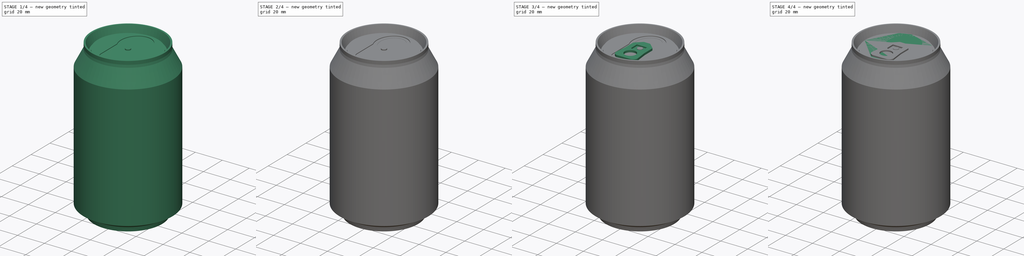
[diagram: build sequence overview — one tinted view per stage of 4, left to right]
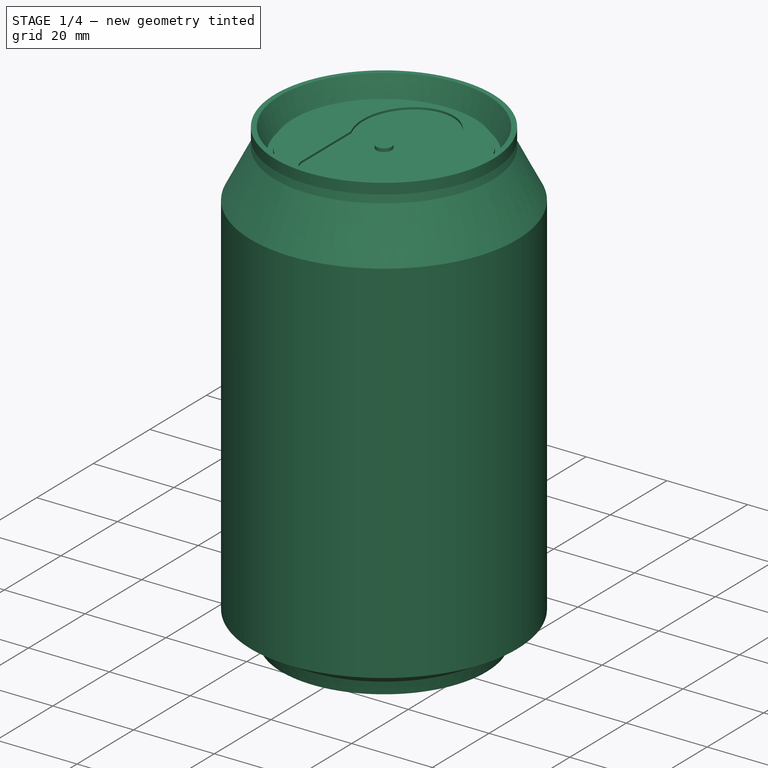
[diagram: stage 1 of 4 — iso view after this stage's code; geometry added in this stage tinted green]
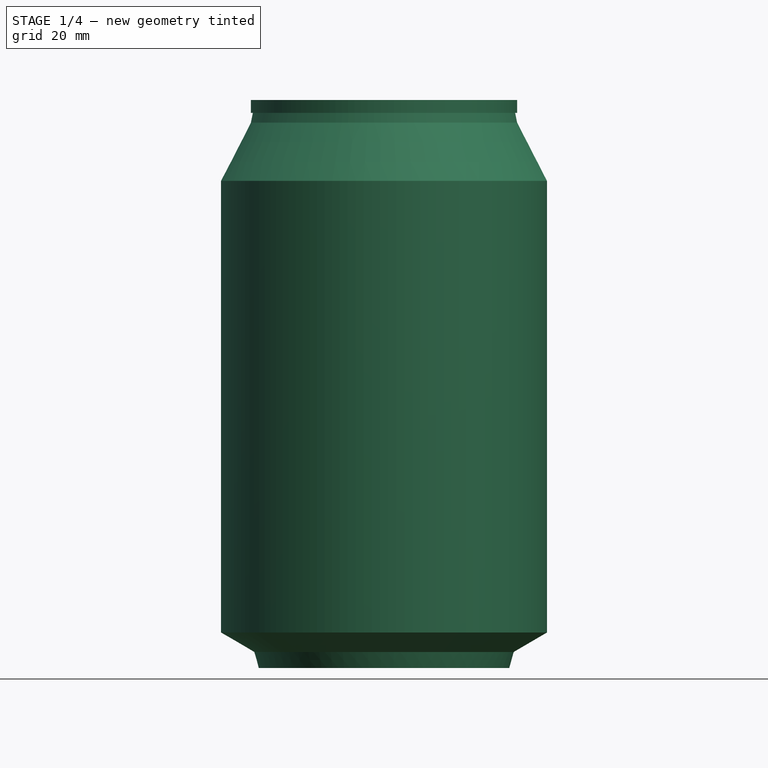
[diagram: stage 1 of 4 — front view after this stage's code; geometry added in this stage tinted green]
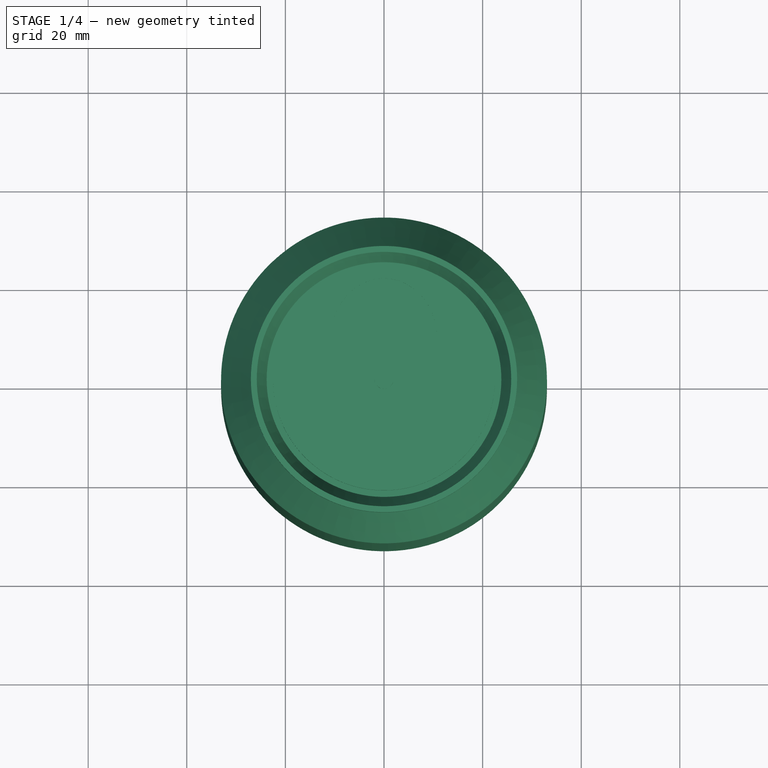
[diagram: stage 1 of 4 — top view after this stage's code; geometry added in this stage tinted green]
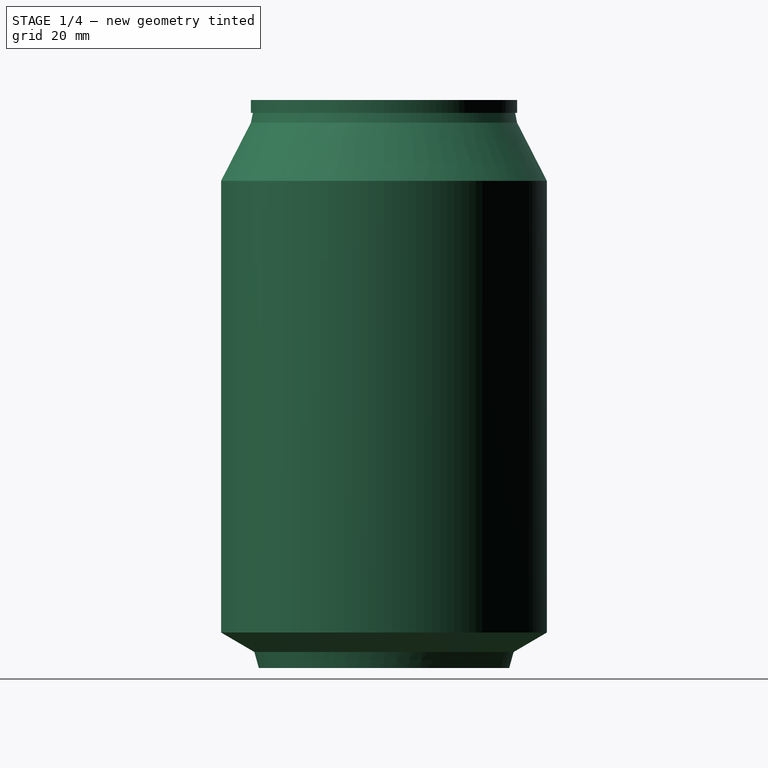
[diagram: stage 1 of 4 — right view after this stage's code; geometry added in this stage tinted green]
FCSTD DOCUMENT  (FreeCAD 0.15R4631 (Git))
Label: coca-cola-can
License: CreativeCommons Attribution-ShareAlike
LicenseURL: http://creativecommons.org/licenses/by-sa/4.0/
objects: Sketcher::SketchObject×8, PartDesign::Pocket×5, PartDesign::Revolution×2, PartDesign::Pad×2, App::DocumentObjectGroup×2, Part::FeaturePython×2, Part::Fillet×1, Part::MultiFuse×1
note: 30 computed .brp shape members not serialized (recipe doc carries the construction recipe); baked Part::Feature solids carry a one-line shape summary decoded from their .brp

FEATURE [Sketcher::SketchObject] Sketch  label="main-body-sketch"
  Placement = pos=(0,0,0) rot=(1,0,0;1.5708rad)
  sketch-geometry (20):
    g0: LineSegment [constr] StartX=0 StartY=0 StartZ=0 EndX=22.4 EndY=0 EndZ=0
    g1: LineSegment [constr] StartX=0 StartY=12.5 StartZ=0 EndX=0 EndY=0 EndZ=0
    g2: LineSegment StartX=22.4 StartY=0 StartZ=0 EndX=22.4 EndY=2.3 EndZ=0
    g3: GeomPoint [constr] X=17 Y=7.3 Z=0
    g4: ArcOfCircle CenterX=0 CenterY=-17.8885 CenterZ=0 NormalX=0 NormalY=0 NormalZ=1 Radius=30.3885 StartAngle=0.977107 EndAngle=1.5708
    g5: ArcOfCircle CenterX=3.5165 CenterY=-12.6782 CenterZ=0 NormalX=0 NormalY=0 NormalZ=1 Radius=24.1025 StartAngle=0.670574 EndAngle=0.977108
    g6: LineSegment StartX=22.4 StartY=0 StartZ=0 EndX=25.4 EndY=0 EndZ=0
    g7: LineSegment StartX=25.4 StartY=0 StartZ=0 EndX=26.3 EndY=3.25 EndZ=0
    g8: LineSegment StartX=26.3 StartY=3.25 StartZ=0 EndX=33.05 EndY=7.2 EndZ=0
    g9: LineSegment StartX=33.05 StartY=7.2 StartZ=0 EndX=33.05 EndY=98.8 EndZ=0
    g10: LineSegment StartX=23.8 StartY=109.2 StartZ=0 EndX=25.8 EndY=115.2 EndZ=0
    g11: LineSegment StartX=25.8 StartY=115.2 StartZ=0 EndX=27 EndY=115.2 EndZ=0
    g12: LineSegment StartX=27 StartY=115.2 StartZ=0 EndX=27 EndY=112.6 EndZ=0
    g13: LineSegment StartX=27 StartY=112.6 StartZ=0 EndX=26.6 EndY=112.6 EndZ=0
    g14: LineSegment StartX=26.6 StartY=112.6 StartZ=0 EndX=27 EndY=110.6 EndZ=0
    g15: LineSegment StartX=27 StartY=110.6 StartZ=0 EndX=33.05 EndY=98.8 EndZ=0
    g16: LineSegment StartX=23.8 StartY=109.2 StartZ=0 EndX=22.5 EndY=109.2 EndZ=0
    g17: LineSegment StartX=22.5 StartY=109.2 StartZ=0 EndX=22.5 EndY=110.9 EndZ=0
    g18: LineSegment StartX=22.5 StartY=110.9 StartZ=0 EndX=0 EndY=110.9 EndZ=0
    g19: LineSegment StartX=0 StartY=110.9 StartZ=0 EndX=0 EndY=12.5 EndZ=0
  constraints (58):
    c: Coincident(g1,g0)
    c: Horizontal(g0)
    c: Vertical(g1)
    c: Coincident(g0,g-1)
    c: DistanceY(g1) = -12.5
    c: DistanceX(g0) = 22.4
    c: Coincident(g2,g0)
    c: Vertical(g2)
    c: DistanceY(g2) = 2.3
    c: DistanceX(g2,g3) = -5.4
    c: DistanceY(g0,g3) = 7.3
    c: PointOnObject(g4,g1)
    c: Coincident(g4,g1)
    c: Coincident(g4,g3)
    c: Coincident(g5,g2)
    c: Coincident(g5,g3)
    c: Tangent(g4,g5)
    c: Horizontal(g6)
    c: Coincident(g6,g0)
    c: DistanceX(g6) = 3
    c: Coincident(g7,g8)
    c: Coincident(g8,g9)
    c: Vertical(g9)
    c: DistanceX(g-1,g8) = 33.05
    c: Coincident(g7,g6)
    c: DistanceX(g6,g7) = 0.9
    c: DistanceY(g6,g7) = 3.25
    c: DistanceY(g8,g6) = -7.2
    c: DistanceY(g-1,g9) = 98.8
    c: Coincident(g10,g11)
    c: Horizontal(g11)
    c: Coincident(g11,g12)
    c: Vertical(g12)
    c: DistanceX(g11) = 1.2
    c: DistanceY(g12) = -2.6
    c: DistanceY(g-1,g10) = 115.2
    c: DistanceX(g-1,g11) = 27
    c: Coincident(g12,g13)
    c: Horizontal(g13)
    c: DistanceX(g13) = -0.4
    c: Coincident(g14,g13)
    c: PointOnObject(g14,g12)
    c: DistanceY(g14,g13) = 2
    c: Coincident(g15,g14)
    c: Coincident(g15,g9)
    c: DistanceX(g10,g10) = 2
    c: DistanceY(g10,g10) = -6
    c: Coincident(g16,g10)
    c: Horizontal(g16)
    c: DistanceX(g16) = -1.3
    c: Coincident(g17,g16)
    c: Vertical(g17)
    c: DistanceY(g10,g17) = -4.3
    c: Coincident(g17,g18)
    c: Horizontal(g18)
    c: Coincident(g18,g19)
    c: Coincident(g19,g1)
    c: Vertical(g19)
FEATURE [PartDesign::Revolution] Revolution  label="main-body"
  Angle = 360
  Axis = (0,0,1)
  Base = (0,0,0)
  Placement = pos=(0,0,0) rot=(1,0,0;1.5708rad)
  ReferenceAxis = -> Sketch [V_Axis]
  Sketch = -> Sketch
FEATURE [Sketcher::SketchObject] Sketch001  label="cutout-1-sketch"
  Placement = pos=(0,0,110.9) rot=(0,0,1;3.14159rad)
  Support = -> Revolution [Face4]
  sketch-geometry (12):
    g0: LineSegment StartX=-5.3 StartY=19.5 StartZ=0 EndX=5.3 EndY=19.5 EndZ=0
    g1: LineSegment StartX=-9.5 StartY=15.3 StartZ=0 EndX=-9.5 EndY=-2 EndZ=0
    g2: LineSegment StartX=9.5 StartY=15.3 StartZ=0 EndX=9.5 EndY=-2 EndZ=0
    g3: ArcOfCircle CenterX=-5.3 CenterY=15.3 CenterZ=0 NormalX=0 NormalY=0 NormalZ=1 Radius=4.2 StartAngle=1.5708 EndAngle=3.14159
    g4: ArcOfCircle CenterX=5.3 CenterY=15.3 CenterZ=0 NormalX=0 NormalY=0 NormalZ=1 Radius=4.2 StartAngle=0 EndAngle=1.5708
    g5: LineSegment [constr] StartX=0 StartY=19.5 StartZ=0 EndX=0 EndY=-20.5 EndZ=0
    g6: LineSegment [constr] StartX=0 StartY=4.5 StartZ=0 EndX=0 EndY=-20.5 EndZ=0
    g7: ArcOfEllipse CenterX=0 CenterY=-8 CenterZ=0 NormalX=0 NormalY=0 NormalZ=1 MajorRadius=12.5 MinorRadius=10.8291 AngleXU=1.5708 StartAngle=1.07014 EndAngle=5.21304
    g8: LineSegment [constr] StartX=0 StartY=4.5 StartZ=0 EndX=0 EndY=-20.5 EndZ=0
    g9: LineSegment [constr] StartX=-10.8291 StartY=-8 StartZ=0 EndX=10.8291 EndY=-8 EndZ=0
    g10: GeomPoint [constr] X=0 Y=-1.7565 Z=0
    g11: GeomPoint [constr] X=0 Y=-14.2435 Z=0
  constraints (25):
    c: Vertical(g1)
    c: Vertical(g2)
    c: Tangent(g0,g3) = 1.5708
    c: Tangent(g1,g3) = -1.5708
    c: Tangent(g0,g4) = 1.5708
    c: Tangent(g2,g4) = 1.5708
    c: Symmetric(g1,g2,g-2)
    c: Symmetric(g0,g0,g-2)
    c: Radius(g3) = 4.2
    c: DistanceX(g1,g2) = 19
    c: DistanceY(g-1,g0) = 19.5
    c: DistanceY(g5) = -40
    c: PointOnObject(g5,g-2)
    c: PointOnObject(g5,g0)
    c: Coincident(g6,g5)
    c: PointOnObject(g6,g5)
    c: DistanceY(g6,g5) = -25
    c: InternalAlignment(g8-g11 -> g7) x4
    c: Vertical(g8)
    c: PointOnObject(g7,g5)
    c: Coincident(g8,g6)
    c: Coincident(g8,g5)
    c: Coincident(g7,g1)
    c: Coincident(g7,g2)
    c: DistanceY(g-1,g1) = -2
FEATURE [PartDesign::Pocket] Pocket  label="cutout-1-sketch001"
  Length = 0.5
  Placement = pos=(0,0,0) rot=(1,0,0;1.5708rad)
  Sketch = -> Sketch001
  Type = 0
FEATURE [Sketcher::SketchObject] Sketch002  label="center-sketch"
  Placement = pos=(0,0,110.4) rot=(0,0,1;3.14159rad)
  Support = -> Pocket [Face23]
  sketch-geometry (1):
    g0: Circle CenterX=0 CenterY=0 CenterZ=0 NormalX=0 NormalY=0 NormalZ=1 Radius=1.9
  constraints (2):
    c: Coincident(g0,g-1)
    c: Radius(g0) = 1.9
FEATURE [PartDesign::Pad] Pad  label="center"
  Length = 0.8
  Length2 = 100
  Placement = pos=(0,0,0) rot=(1,0,0;1.5708rad)
  Sketch = -> Sketch002
  Type = 0
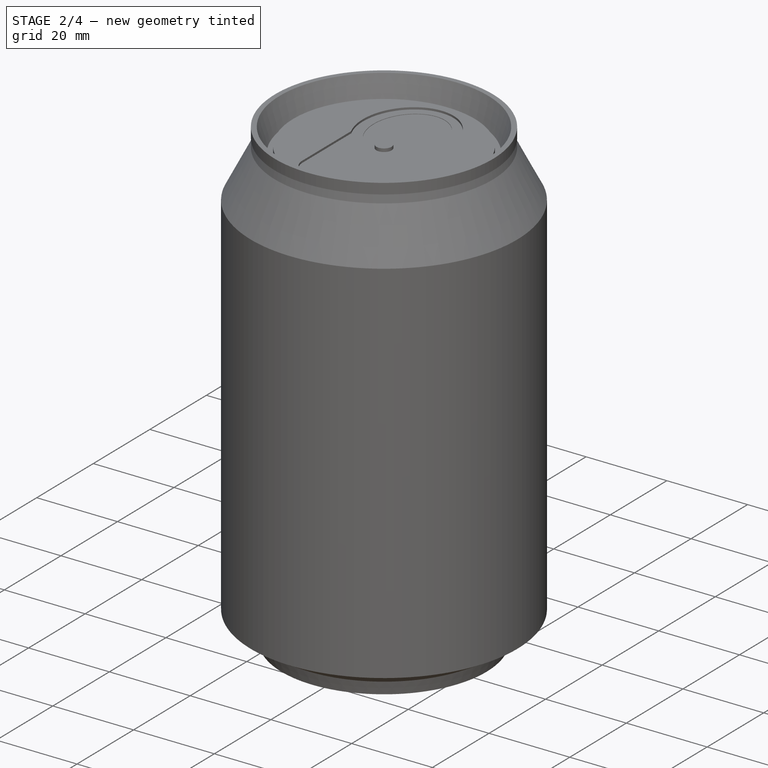
[diagram: stage 2 of 4 — iso view after this stage's code; geometry added in this stage tinted green]
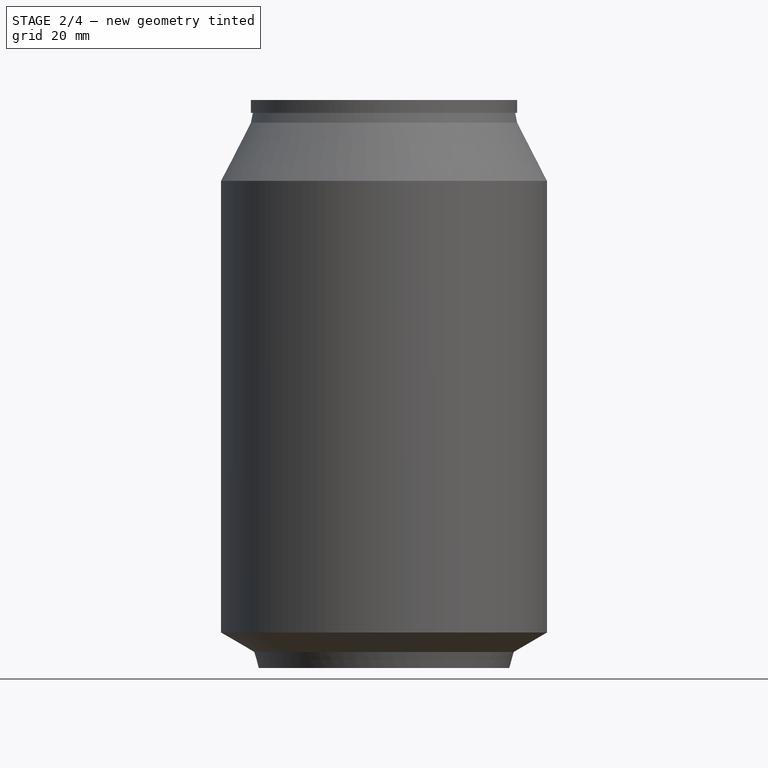
[diagram: stage 2 of 4 — front view after this stage's code; geometry added in this stage tinted green]
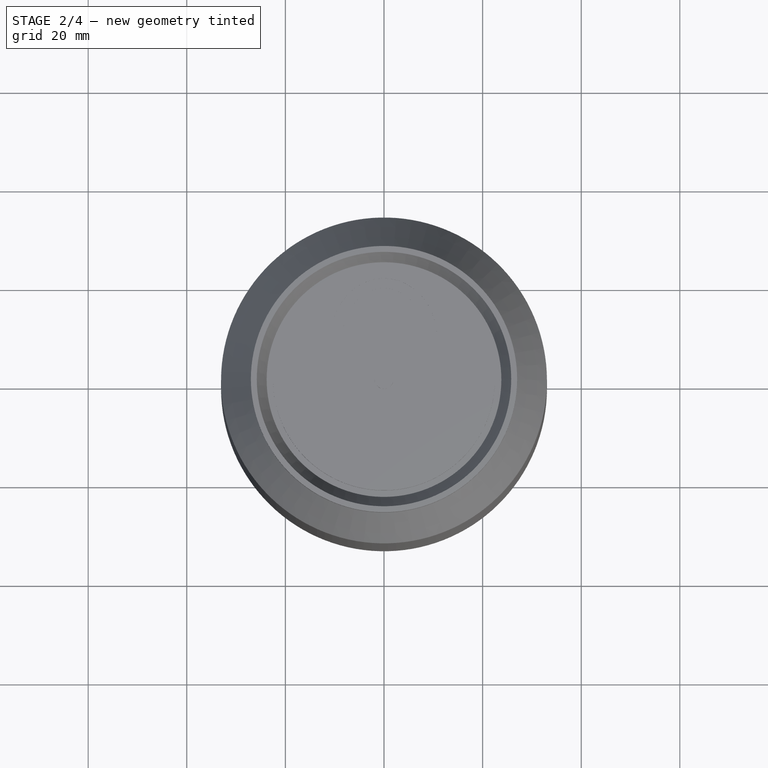
[diagram: stage 2 of 4 — top view after this stage's code; geometry added in this stage tinted green]
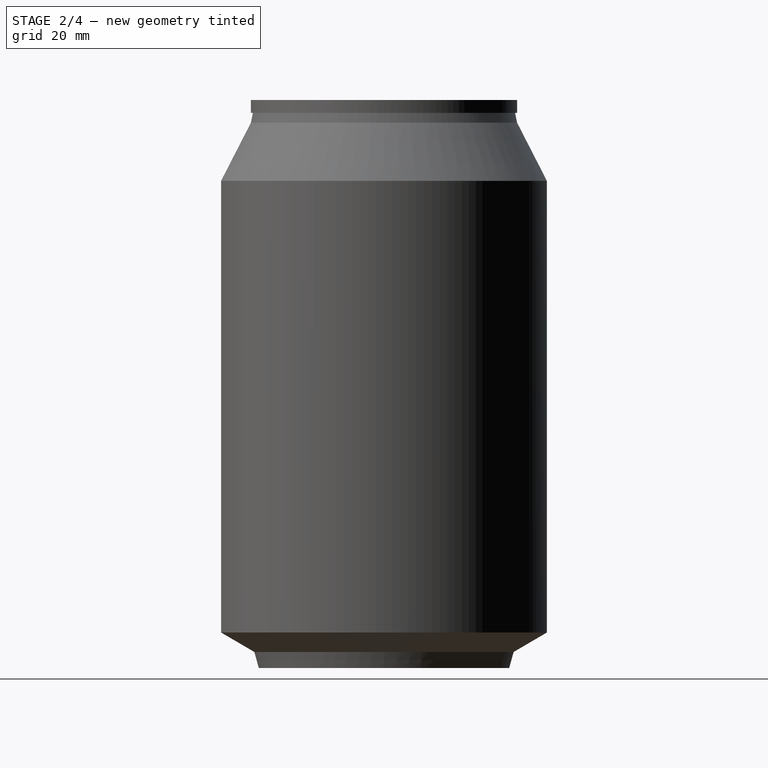
[diagram: stage 2 of 4 — right view after this stage's code; geometry added in this stage tinted green]
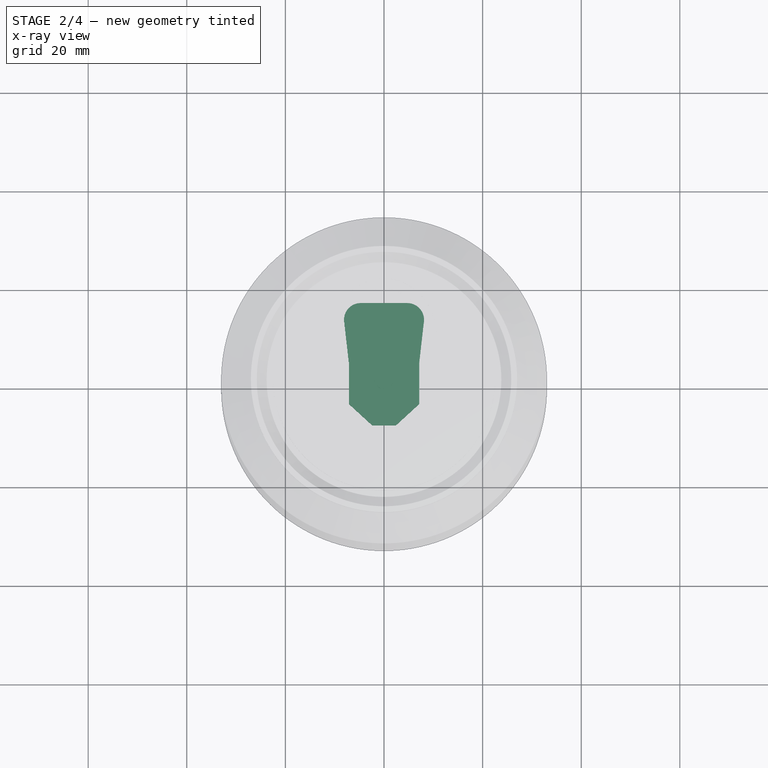
[diagram: stage 2 of 4 — x-ray composite at the top view; earlier geometry ghosted, this stage's added geometry solid]
FEATURE [Sketcher::SketchObject] Sketch003  label="lid-main-body-sketch"
  sketch-geometry (12):
    g0: LineSegment StartX=-4.72198 StartY=17.4 StartZ=0 EndX=4.72198 EndY=17.4 EndZ=0
    g1: LineSegment [constr] StartX=-7.15 StartY=5.3 StartZ=0 EndX=7.15 EndY=5.3 EndZ=0
    g2: LineSegment StartX=-8.1 StartY=13.614 StartZ=0 EndX=-7.15 EndY=5.3 EndZ=0
    g3: LineSegment StartX=8.1 StartY=13.614 StartZ=0 EndX=7.15 EndY=5.3 EndZ=0
    g4: LineSegment [constr] StartX=0 StartY=17.4 StartZ=0 EndX=0 EndY=-7.5 EndZ=0
    g5: LineSegment StartX=-2.35 StartY=-7.5 StartZ=0 EndX=2.35 EndY=-7.5 EndZ=0
    g6: LineSegment StartX=-7.15 StartY=5.3 StartZ=0 EndX=-7.15 EndY=-3.1 EndZ=0
    g7: LineSegment StartX=-7.15 StartY=-3.1 StartZ=0 EndX=-2.35 EndY=-7.5 EndZ=0
    g8: LineSegment StartX=7.15 StartY=5.3 StartZ=0 EndX=7.15 EndY=-3.1 EndZ=0
    g9: LineSegment StartX=7.15 StartY=-3.1 StartZ=0 EndX=2.35 EndY=-7.5 EndZ=0
    g10: ArcOfCircle CenterX=-4.72198 CenterY=14 CenterZ=0 NormalX=0 NormalY=0 NormalZ=1 Radius=3.4 StartAngle=1.57079 EndAngle=3.25536
    g11: ArcOfCircle CenterX=4.72198 CenterY=14 CenterZ=0 NormalX=0 NormalY=0 NormalZ=1 Radius=3.4 StartAngle=6.16942 EndAngle=7.85398
  constraints (35):
    c: Symmetric(g0,g0,g-2)
    c: Symmetric(g2,g3,g-2)
    c: Horizontal(g1)
    c: DistanceX(g1) = 14.3
    c: Symmetric(g1,g1,g-2)
    c: DistanceY(g1,g0) = 12.1
    c: Coincident(g2,g1)
    c: Coincident(g3,g1)
    c: Vertical(g4)
    c: PointOnObject(g4,g0)
    c: DistanceY(g4) = -24.9
    c: Horizontal(g5)
    c: DistanceX(g5) = 4.7
    c: Symmetric(g5,g5,g-2)
    c: PointOnObject(g4,g5)
    c: Coincident(g6,g1)
    c: Vertical(g6)
    c: DistanceY(g5,g6) = 4.4
    c: Coincident(g7,g6)
    c: Coincident(g7,g5)
    c: Coincident(g1,g8)
    c: Vertical(g8)
    c: Coincident(g8,g9)
    c: Coincident(g9,g5)
    c: Symmetric(g8,g6,g4)
    c: DistanceX(g2,g3) = 16.2
    c: DistanceY(g-1,g5) = -7.5
    c: Coincident(g10,g0)
    c: Coincident(g10,g2)
    c: Radius(g10) = 3.4
    c: Tangent(g10,g2)
    c: Tangent(g10,g0)
    c: Symmetric(g10,g11,g4)
    c: Coincident(g11,g3)
    c: Coincident(g0,g11)
FEATURE [PartDesign::Pad] Pad001  label="lid-main-body"
  Length = 1.5
  Length2 = 100
  Sketch = -> Sketch003
  Type = 0
FEATURE [App::DocumentObjectGroup] Group  label="lid-src"
  Group = -> [Pad001,Pocket001,Pocket002,Fillet]
FEATURE [Sketcher::SketchObject] Sketch007  label="can-cutout-2-sketch"
  Placement = pos=(0,0,110.4) rot=(0,0,1;3.14159rad)
  Support = -> Pad [Face23]
  sketch-geometry (6):
    g0: ArcOfEllipse CenterX=0 CenterY=-8.3 CenterZ=0 NormalX=0 NormalY=0 NormalZ=1 MajorRadius=10.2078 MinorRadius=8.4 AngleXU=1.5708 StartAngle=0.905652 EndAngle=5.37753
    g1: LineSegment [constr] StartX=0 StartY=1.90784 StartZ=0 EndX=0 EndY=-18.5078 EndZ=0
    g2: LineSegment [constr] StartX=-8.4 StartY=-8.3 StartZ=0 EndX=8.4 EndY=-8.3 EndZ=0
    g3: GeomPoint [constr] X=0 Y=-2.5 Z=0
    g4: GeomPoint [constr] X=0 Y=-14.1 Z=0
    g5: LineSegment StartX=-6.60935 StartY=-2 StartZ=0 EndX=6.60935 EndY=-2 EndZ=0
  constraints (11):
    c: InternalAlignment(g1-g4 -> g0) x4
    c: PointOnObject(g1,g-2)
    c: Vertical(g1)
    c: DistanceY(g-1,g0) = -8.3
    c: DistanceX(g2) = 16.8
    c: DistanceY(g0,g4) = -5.8
    c: Horizontal(g5)
    c: DistanceY(g-1,g5) = -2
    c: Coincident(g0,g5)
    c: Symmetric(g0,g0,g1)
    c: Coincident(g5,g0)
FEATURE [PartDesign::Pocket] Pocket004  label="can-cutout-2"
  Length = 0.1
  Placement = pos=(0,0,0) rot=(1,0,0;1.5708rad)
  Sketch = -> Sketch007
  Type = 0
FEATURE [Part::FeaturePython] Clone001  label="clone-can"  # Draft clone (typed FeaturePython)
  Objects = -> [Pocket004]
  Placement = pos=(0,0,0) rot=(1,0,0;1.5708rad)
  Scale = (1,1,1)
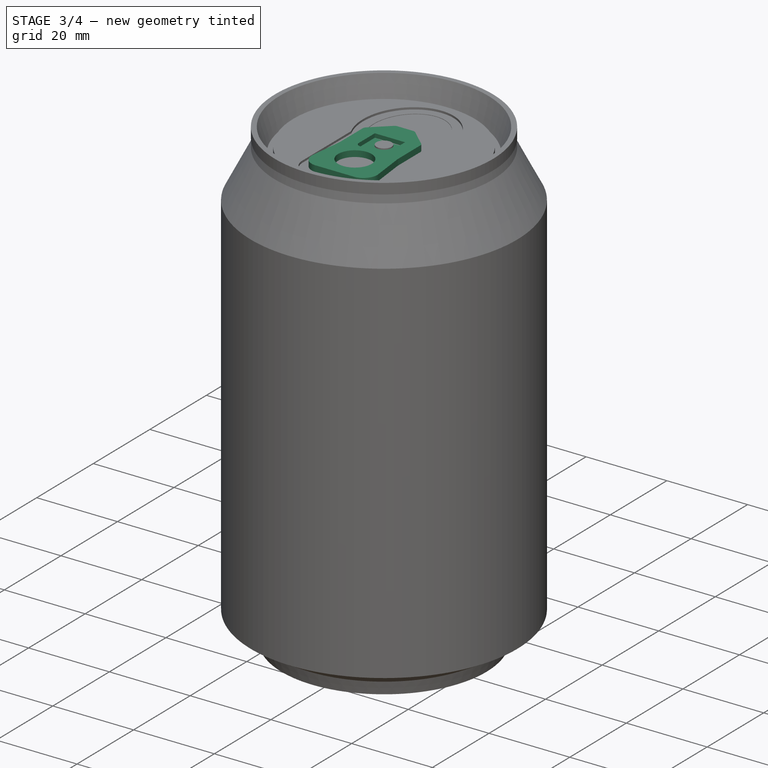
[diagram: stage 3 of 4 — iso view after this stage's code; geometry added in this stage tinted green]
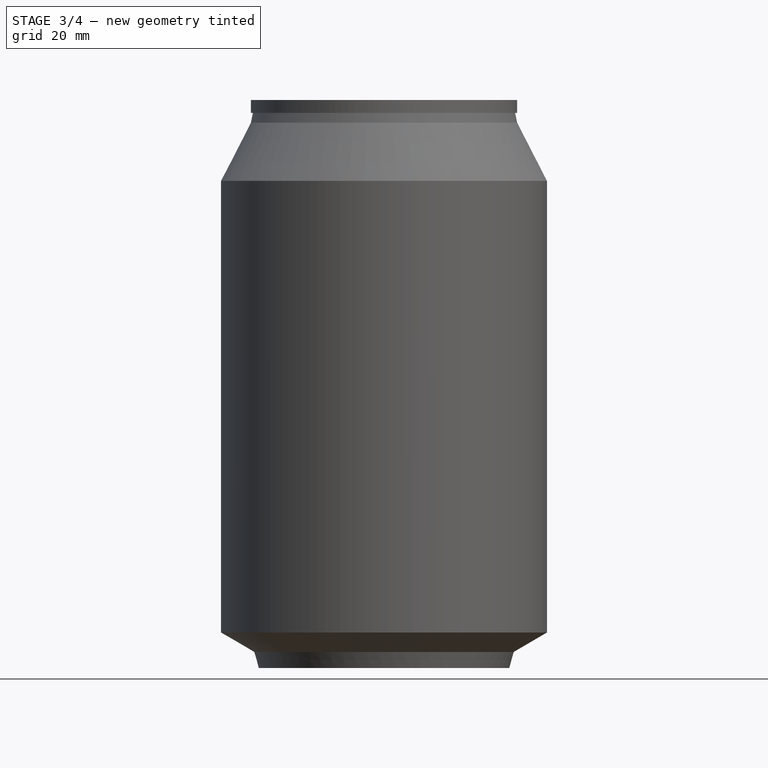
[diagram: stage 3 of 4 — front view after this stage's code; geometry added in this stage tinted green]
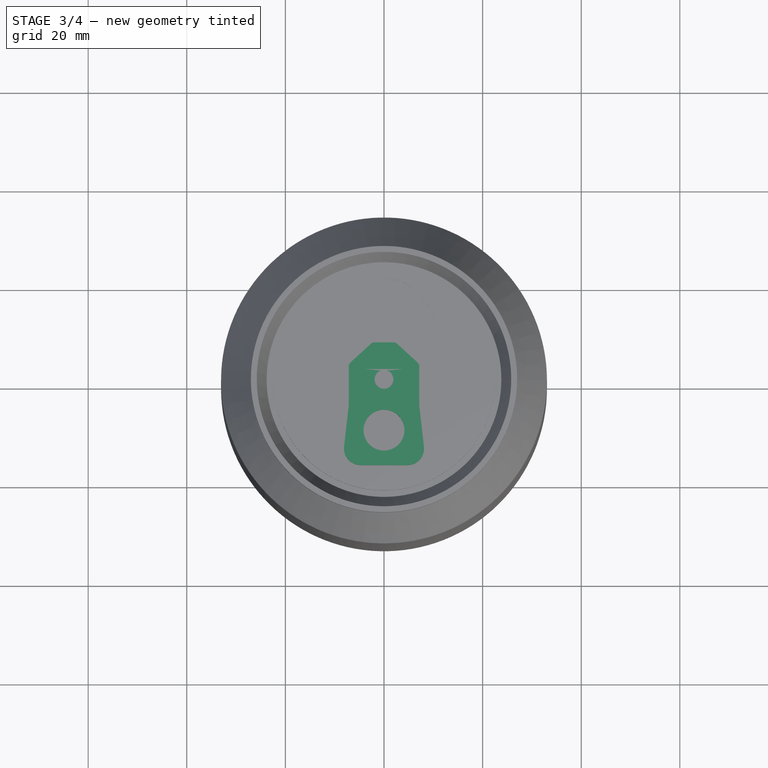
[diagram: stage 3 of 4 — top view after this stage's code; geometry added in this stage tinted green]
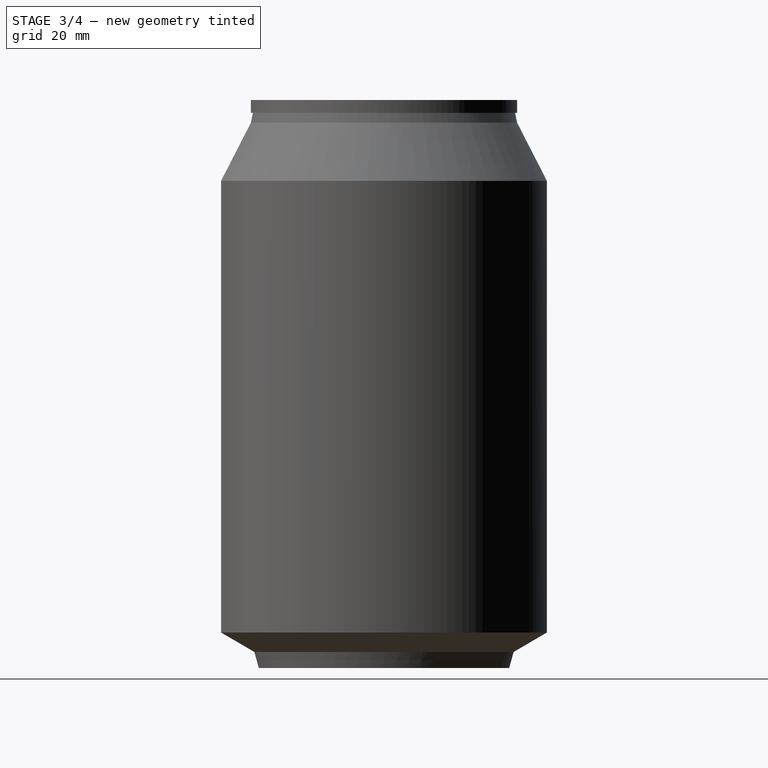
[diagram: stage 3 of 4 — right view after this stage's code; geometry added in this stage tinted green]
FEATURE [Sketcher::SketchObject] Sketch004  label="lid-cutout-1-sketch"
  Placement = pos=(0,0,1.5) rot=(0,0,1;0rad)
  Support = -> Pad001 [Face12]
  sketch-geometry (1):
    g0: Circle CenterX=0 CenterY=0 CenterZ=0 NormalX=0 NormalY=0 NormalZ=1 Radius=1.75
  constraints (2):
    c: Coincident(g0,g-1)
    c: Radius(g0) = 1.75
FEATURE [PartDesign::Pocket] Pocket001  label="lid-cutout-1"
  Length = 5
  Sketch = -> Sketch004
  Type = 1
FEATURE [Sketcher::SketchObject] Sketch005  label="lid-cutout-2-sketch"
  Placement = pos=(0,0,1.5) rot=(0,0,1;0rad)
  Support = -> Pocket001 [Face5]
  sketch-geometry (1):
    g0: Circle CenterX=0 CenterY=10.3 CenterZ=0 NormalX=0 NormalY=0 NormalZ=1 Radius=4.15
  constraints (3):
    c: PointOnObject(g0,g-2)
    c: DistanceY(g-1,g0) = 10.3
    c: Radius(g0) = 4.15
FEATURE [PartDesign::Pocket] Pocket002  label="lid-cutout-2"
  Length = 5
  Sketch = -> Sketch005
  Type = 1
FEATURE [Sketcher::SketchObject] Sketch006  label="lid-cutout-3-sketch"
  Placement = pos=(0,0,1.5) rot=(0,0,1;0rad)
  Support = -> Pocket002 [Face5]
  sketch-geometry (6):
    g0: LineSegment StartX=-2.55 StartY=4.7 StartZ=0 EndX=2.55 EndY=4.7 EndZ=0
    g1: LineSegment StartX=3.75 StartY=3.5 StartZ=0 EndX=3.75 EndY=-2.1 EndZ=0
    g2: LineSegment StartX=3.75 StartY=-2.1 StartZ=0 EndX=-3.75 EndY=-2.1 EndZ=0
    g3: LineSegment StartX=-3.75 StartY=-2.1 StartZ=0 EndX=-3.75 EndY=3.5 EndZ=0
    g4: ArcOfCircle CenterX=-2.55 CenterY=3.5 CenterZ=0 NormalX=0 NormalY=0 NormalZ=1 Radius=1.2 StartAngle=1.5708 EndAngle=3.14159
    g5: ArcOfCircle CenterX=2.55 CenterY=3.5 CenterZ=0 NormalX=0 NormalY=0 NormalZ=1 Radius=1.2 StartAngle=0 EndAngle=1.5708
  constraints (15):
    c: Coincident(g1,g2)
    c: Coincident(g2,g3)
    c: Horizontal(g2)
    c: Vertical(g1)
    c: Vertical(g3)
    c: Tangent(g0,g4) = 1.5708
    c: Tangent(g3,g4) = 1.5708
    c: Tangent(g0,g5) = 1.5708
    c: Tangent(g1,g5) = 1.5708
    c: Symmetric(g0,g0,g-2)
    c: Symmetric(g1,g3,g-2)
    c: Radius(g4) = 1.2
    c: DistanceX(g3,g1) = 7.5
    c: DistanceY(g1,g0) = 6.8
    c: DistanceY(g-1,g2) = -2.1
FEATURE [PartDesign::Pocket] Pocket003  label="lid-cutout-3"
  Length = 1
  Sketch = -> Sketch006
  Type = 0
FEATURE [Part::Fillet] Fillet
  Base = -> Pocket003
  Edges = 4 edges r=1: [Edge35,Edge37,Edge38,Edge39]
  Placement = pos=(0,0,110.4) rot=(0,0,1;3.14159rad)
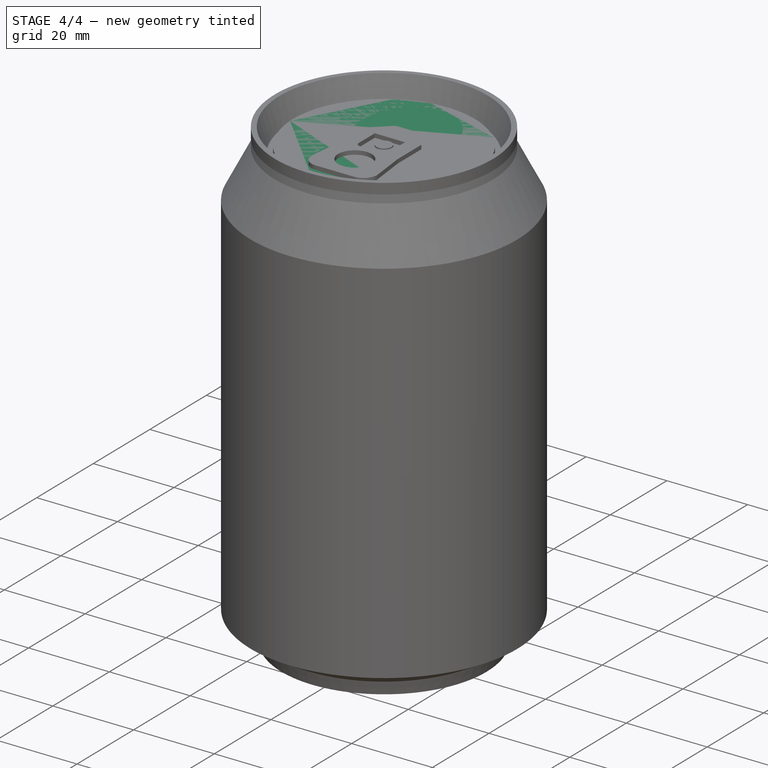
[diagram: stage 4 of 4 — iso view after this stage's code; geometry added in this stage tinted green]
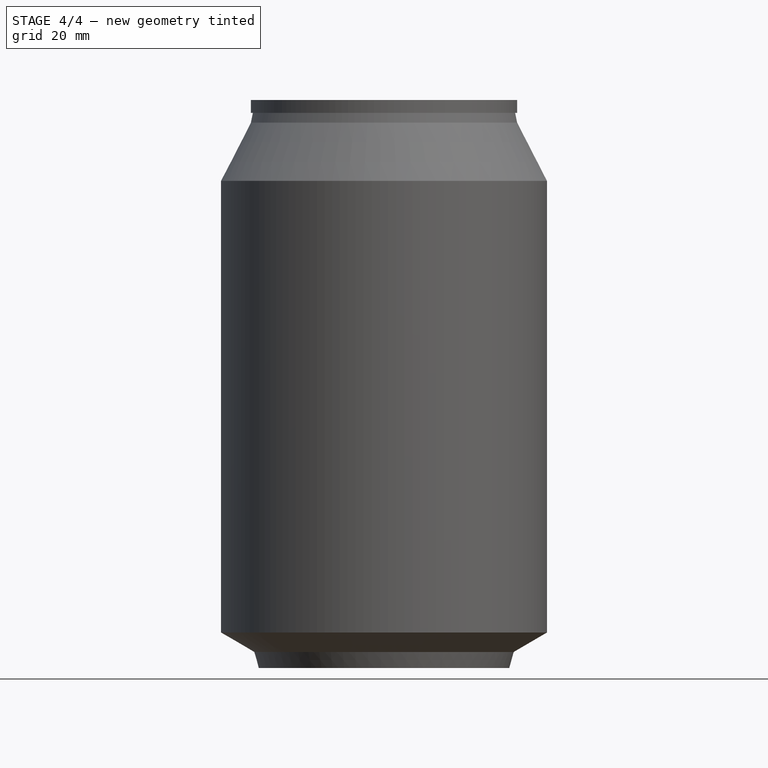
[diagram: stage 4 of 4 — front view after this stage's code; geometry added in this stage tinted green]
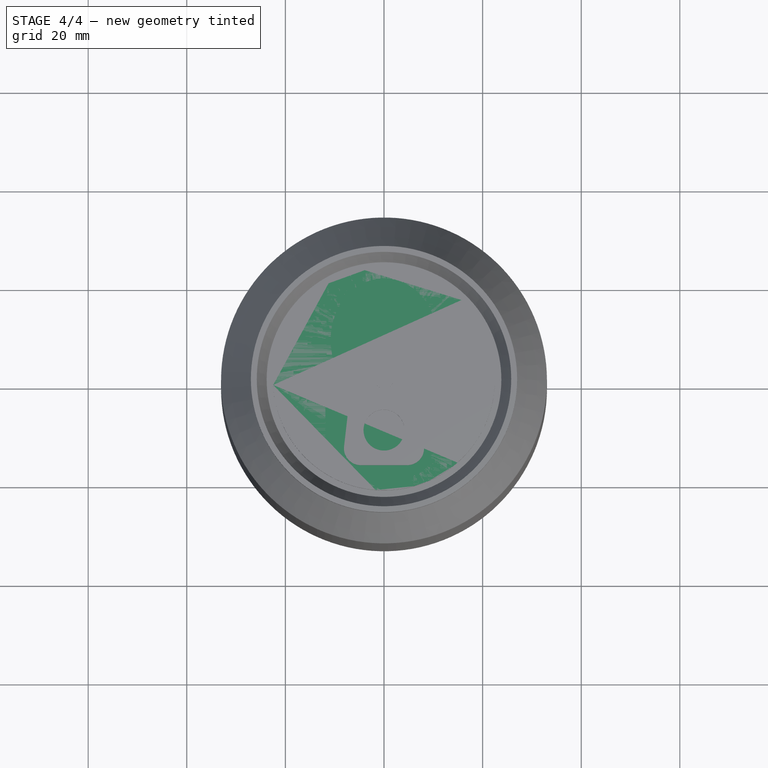
[diagram: stage 4 of 4 — top view after this stage's code; geometry added in this stage tinted green]
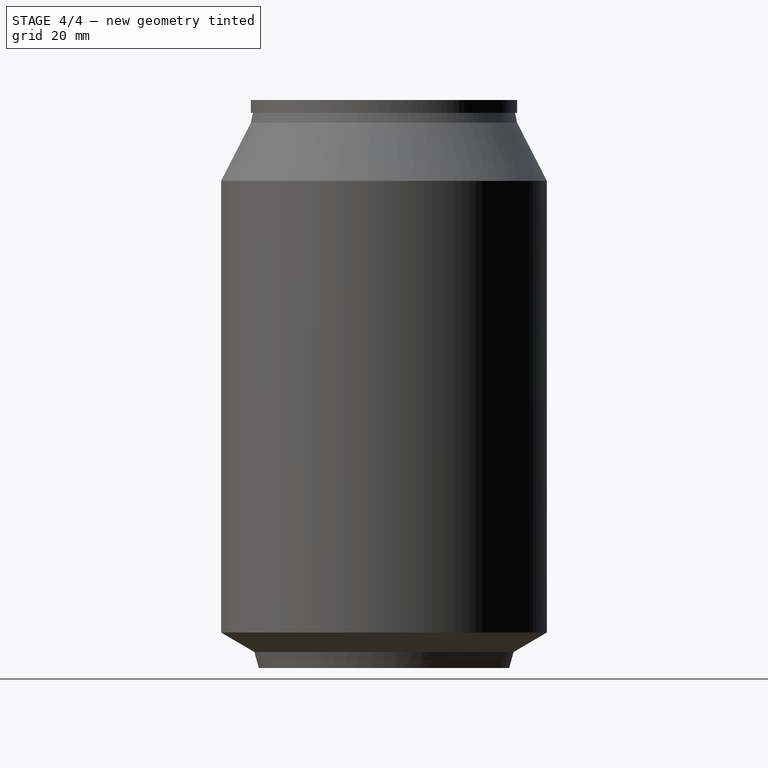
[diagram: stage 4 of 4 — right view after this stage's code; geometry added in this stage tinted green]
FEATURE [PartDesign::Revolution] Revolution001  label="main-body001"
  Angle = 360
  Axis = (0,0,1)
  Base = (0,0,0)
  Placement = pos=(0,0,0) rot=(1,0,0;1.5708rad)
  ReferenceAxis = -> Sketch [V_Axis]
  Sketch = -> Sketch
FEATURE [App::DocumentObjectGroup] Group001  label="can-src"
  Group = -> [Revolution001,Pocket,Pad,Pocket004]
FEATURE [Part::FeaturePython] Clone  label="clone-lid"  # Draft clone (typed FeaturePython)
  Objects = -> [Fillet]
  Placement = pos=(0,0,110.4) rot=(0,0,1;3.14159rad)
  Scale = (1,1,1)
FEATURE [Part::MultiFuse] Fusion  label="final-can"
  Shapes = -> [Clone,Clone001]
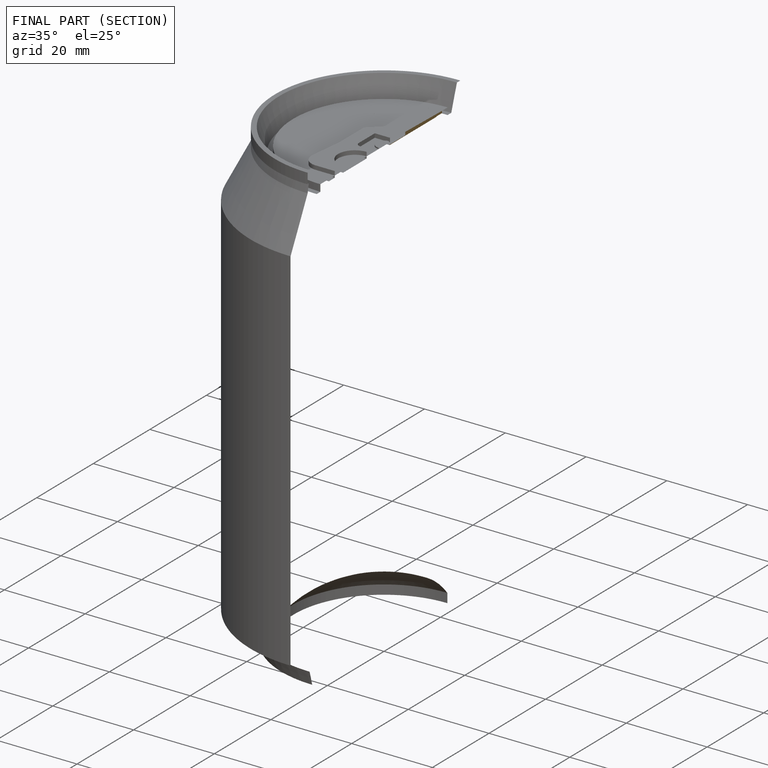
[diagram: finished part — half-section view (interior)]
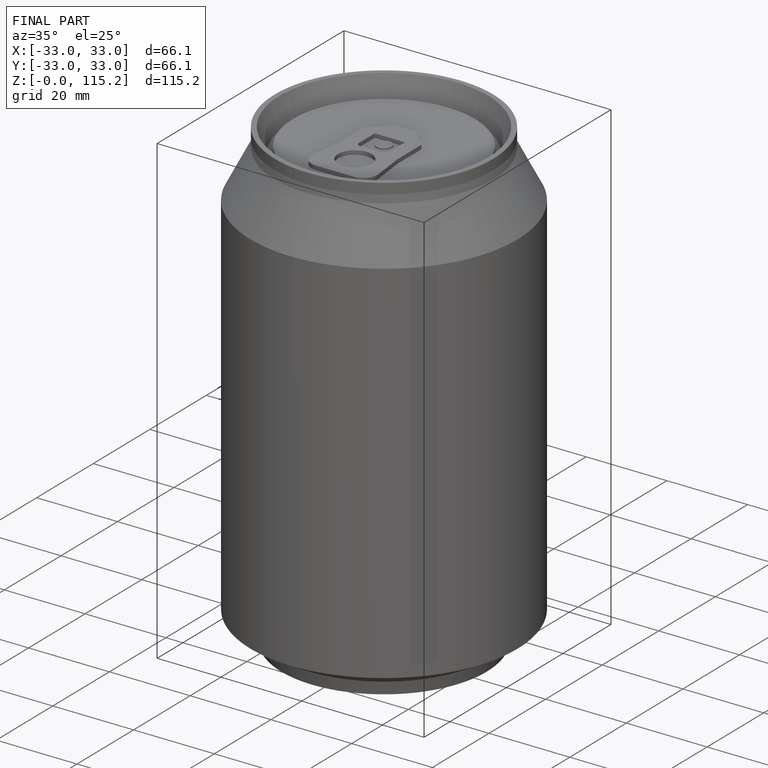
[diagram: finished part — iso view with bounding-box wireframe]
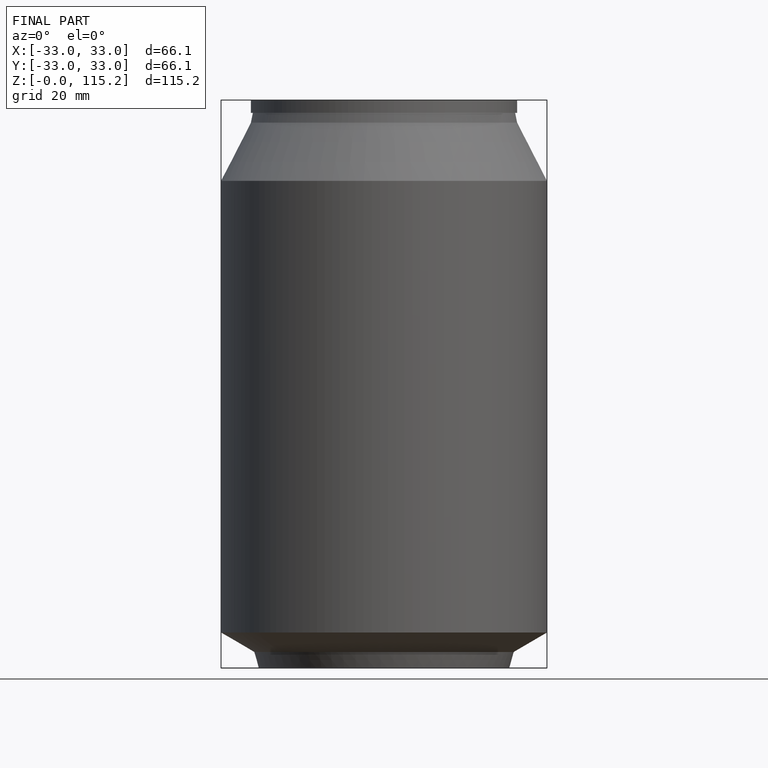
[diagram: finished part — front view with bounding-box wireframe]
